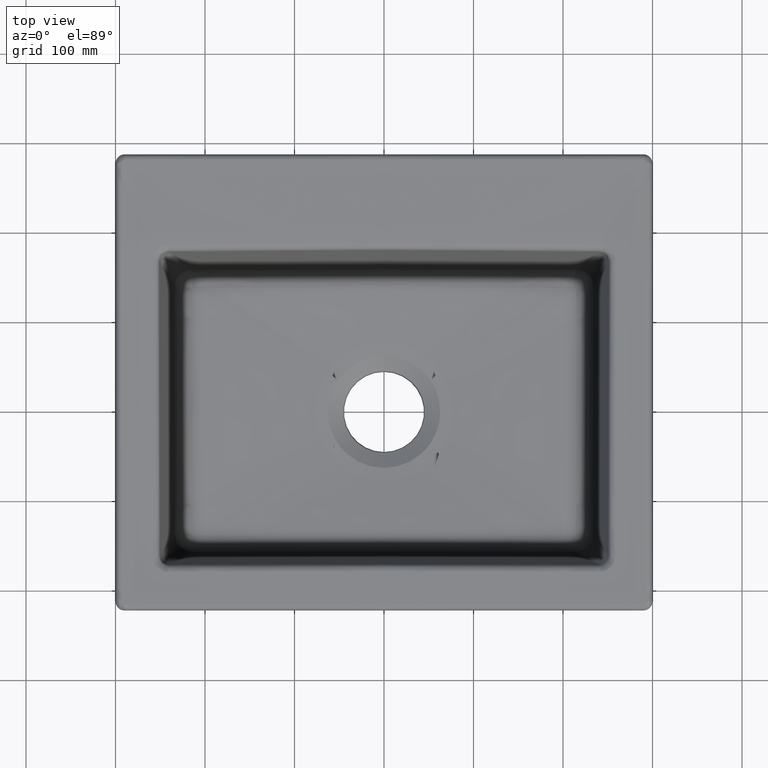
[diagram: clean part render]
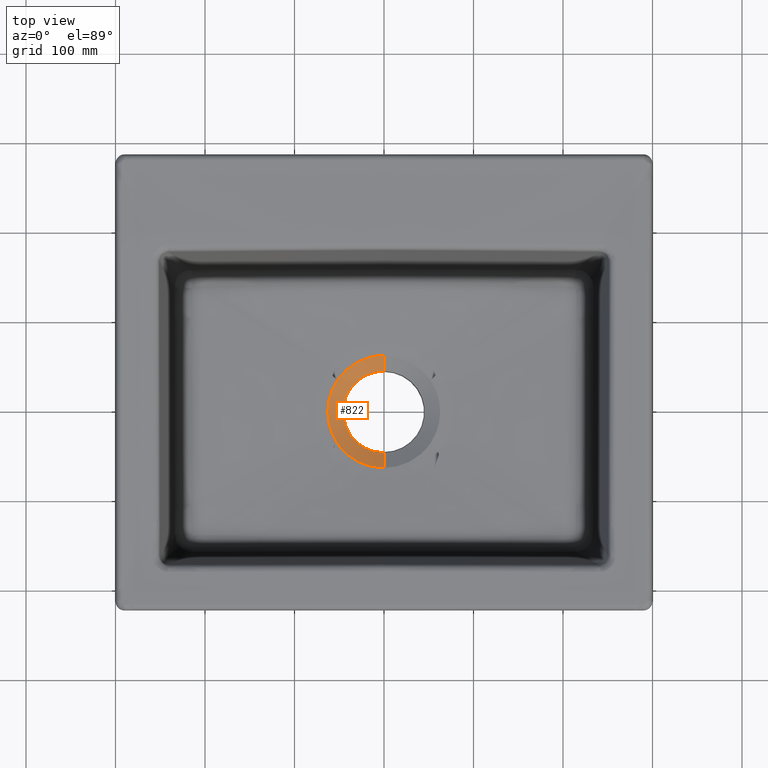
[diagram: same view with one face highlighted and labeled with its STEP entity id]
A machine part, top view. The second image highlights one B-rep face of the part: STEP entity #822.
In plain terms, the highlighted conical surface has half-angle 60 deg.
Its self-contained STEP definition (entity closure, byte-faithful):
#445=CONICAL_SURFACE('',#5526,45.6192580584448,59.9999999999997);
#448=LINE('',#6560,#477);
#449=LINE('',#6562,#478);
#477=VECTOR('',#5634,1.);
#478=VECTOR('',#5635,1.);
#572=CIRCLE('',#5524,45.6192580584448);
#822=ADVANCED_FACE('',(#1281),#445,.F.);
#1281=FACE_OUTER_BOUND('',#1645,.T.);
#1645=EDGE_LOOP('',(#2703,#2704,#2705,#2706,#2707,#2708));
#2703=ORIENTED_EDGE('',*,*,#4052,.T.);
#2704=ORIENTED_EDGE('',*,*,#4483,.F.);
#2705=ORIENTED_EDGE('',*,*,#4484,.F.);
#2706=ORIENTED_EDGE('',*,*,#4485,.F.);
#2707=ORIENTED_EDGE('',*,*,#4053,.T.);
#2708=ORIENTED_EDGE('',*,*,#4482,.T.);
#3561=VERTEX_POINT('',#6555);
#3562=VERTEX_POINT('',#6557);
#3563=VERTEX_POINT('',#6561);
#3564=VERTEX_POINT('',#6563);
#3808=VERTEX_POINT('',#14389);
#3809=VERTEX_POINT('',#14402);
#4052=EDGE_CURVE('',#3562,#3563,#448,.T.);
#4053=EDGE_CURVE('',#3564,#3561,#449,.T.);
#4482=EDGE_CURVE('',#3561,#3562,#572,.T.);
#4483=EDGE_CURVE('',#3808,#3563,#5186,.T.);
#4484=EDGE_CURVE('',#3809,#3808,#5187,.T.);
#4485=EDGE_CURVE('',#3564,#3809,#5188,.T.);
#5186=B_SPLINE_CURVE_WITH_KNOTS('',3,(#14379,#14380,#14381,#14382,#14383,
#14384,#14385,#14386,#14387,#14388),.UNSPECIFIED.,.F.,.F.,(4,2,2,2,4),(0.,
0.25,0.5,0.75,1.),.UNSPECIFIED.);
#5187=B_SPLINE_CURVE_WITH_KNOTS('',3,(#14390,#14391,#14392,#14393,#14394,
#14395,#14396,#14397,#14398,#14399,#14400,#14401),.UNSPECIFIED.,.F.,.F.,
(4,2,2,2,2,4),(0.,0.25,0.5,0.625,0.75,1.),.UNSPECIFIED.);
#5188=B_SPLINE_CURVE_WITH_KNOTS('',3,(#14403,#14404,#14405,#14406,#14407,
#14408,#14409,#14410,#14411,#14412),.UNSPECIFIED.,.F.,.F.,(4,2,2,2,4),(0.,
0.25,0.5,0.75,1.),.UNSPECIFIED.);
#5524=AXIS2_PLACEMENT_3D('',#14377,#5858,#5859);
#5526=AXIS2_PLACEMENT_3D('',#14413,#5862,#5863);
#5634=DIRECTION('',(0.,0.866025403784436,0.500000000000005));
#5635=DIRECTION('',(0.,0.866025403784436,-0.500000000000005));
#5858=DIRECTION('',(0.,0.,-1.));
#5859=DIRECTION('',(0.,1.,0.));
#5862=DIRECTION('',(0.,0.,1.));
#5863=DIRECTION('',(0.,-1.,0.));
#6555=CARTESIAN_POINT('',(-5.14496463427281E-15,-45.6192580584449,-209.730616223325));
#6557=CARTESIAN_POINT('',(-3.74827767525402E-15,45.6192580584448,-209.730616223325));
#6560=CARTESIAN_POINT('',(0.,-4.90115767001933E-14,-236.068907143599));
#6561=CARTESIAN_POINT('',(1.57980973732951E-13,62.7624659108409,-199.832980489374));
#6562=CARTESIAN_POINT('',(0.,-4.90115767001933E-14,-236.068907143599));
#6563=CARTESIAN_POINT('',(4.87175380272443E-9,-62.7624648374055,-199.832980309164));
#14377=CARTESIAN_POINT('',(-5.55111512312578E-14,-4.90115767001933E-14,
-209.730616223325));
#14379=CARTESIAN_POINT('',(-52.0629073764795,35.0511171394943,-199.832980508934));
#14380=CARTESIAN_POINT('',(-49.1797240485121,39.333631330297,-199.832980508934));
#14381=CARTESIAN_POINT('',(-45.8357404364214,43.1770957164455,-199.832979896847));
#14382=CARTESIAN_POINT('',(-38.2572836224558,50.0155673720491,-199.832979741132));
#14383=CARTESIAN_POINT('',(-33.9929593687453,53.0048534290093,-199.832981709259));
#14384=CARTESIAN_POINT('',(-25.0074378318652,57.78982912569,-199.832979300899));
#14385=CARTESIAN_POINT('',(-20.1749273708307,59.6520694219108,-199.832980609979));
#14386=CARTESIAN_POINT('',(-10.2293311303916,62.1350066668361,-199.832975145199));
#14387=CARTESIAN_POINT('',(-5.16263914425143,62.7624585807853,-199.83298478698));
#14388=CARTESIAN_POINT('',(-3.49240792534729E-13,62.7624660498801,-199.832980474696));
#14389=CARTESIAN_POINT('',(-52.0629073764796,35.0511171394943,-199.832980508934));
#14390=CARTESIAN_POINT('',(-52.1158131085053,-34.9724057116147,-199.832980508934));
#14391=CARTESIAN_POINT('',(-55.5947441265461,-29.7881092623824,-199.832980508918));
#14392=CARTESIAN_POINT('',(-58.2304069908636,-24.2248445270228,-199.832977561349));
#14393=CARTESIAN_POINT('',(-61.8465083595294,-12.3544502060822,-199.83297919196));
#14394=CARTESIAN_POINT('',(-62.7615526158448,-6.18626252907302,-199.832977780542));
#14395=CARTESIAN_POINT('',(-62.7629216721111,3.07914890612394,-199.832981854362));
#14396=CARTESIAN_POINT('',(-62.5311687505129,6.21062450734157,-199.832896439363));
#14397=CARTESIAN_POINT('',(-61.6170941489319,12.3309590437958,-199.832896806301));
#14398=CARTESIAN_POINT('',(-60.9383747758985,15.3339560170839,-199.832976499666));
#14399=CARTESIAN_POINT('',(-58.2468742760604,24.1739386049434,-199.832982076788));
#14400=CARTESIAN_POINT('',(-55.5496111528034,29.8721684904816,-199.832980508934));
#14401=CARTESIAN_POINT('',(-52.0629073764796,35.0511171394943,-199.832980508934));
#14402=CARTESIAN_POINT('',(-52.1158131101449,-34.9724057127149,-199.832980508843));
#14403=CARTESIAN_POINT('',(1.4048607765517E-11,-62.7624666826017,-199.832980109394));
#14404=CARTESIAN_POINT('',(-5.17071924865551,-62.7624921792413,-199.832965388903));
#14405=CARTESIAN_POINT('',(-10.234240106216,-62.1330744789678,-199.832985901291));
#14406=CARTESIAN_POINT('',(-20.1541410579243,-59.6579654295431,-199.832969222566));
#14407=CARTESIAN_POINT('',(-25.021691824618,-57.7843462902045,-199.832984859709));
#14408=CARTESIAN_POINT('',(-34.0194342034751,-52.9886379250282,-199.83297605297));
#14409=CARTESIAN_POINT('',(-38.2678020086004,-50.0104642150504,-199.832981255345));
#14410=CARTESIAN_POINT('',(-45.884637175249,-43.1285510658806,-199.832978292483));
#14411=CARTESIAN_POINT('',(-49.2345908444441,-39.2659977017138,-199.832980508934));
#14412=CARTESIAN_POINT('',(-52.1158131085053,-34.9724057116147,-199.832980508934));
#14413=CARTESIAN_POINT('',(-5.55111512312578E-14,-4.90115767001933E-14,
-209.730616223325));